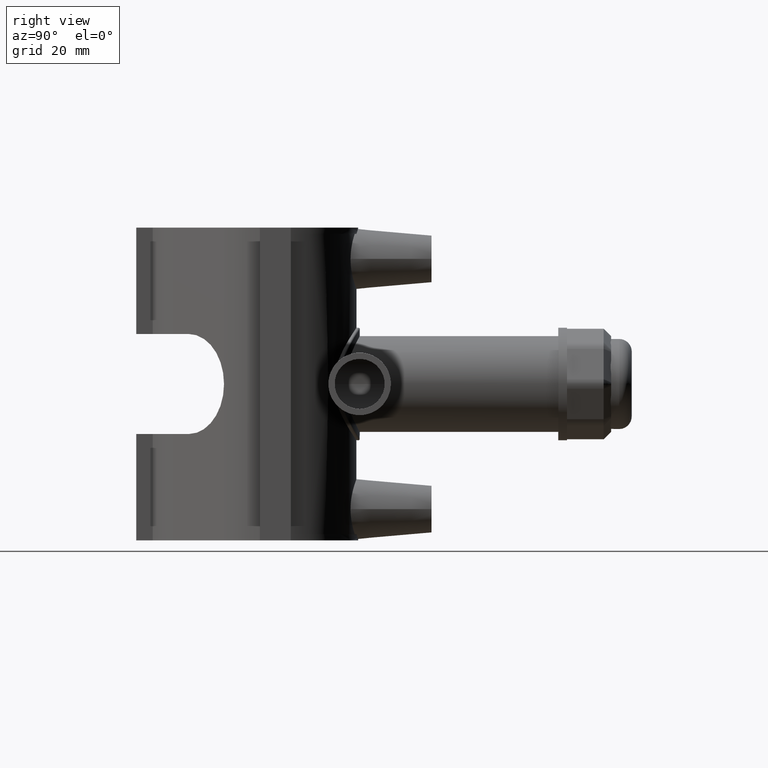
[diagram: clean part render]
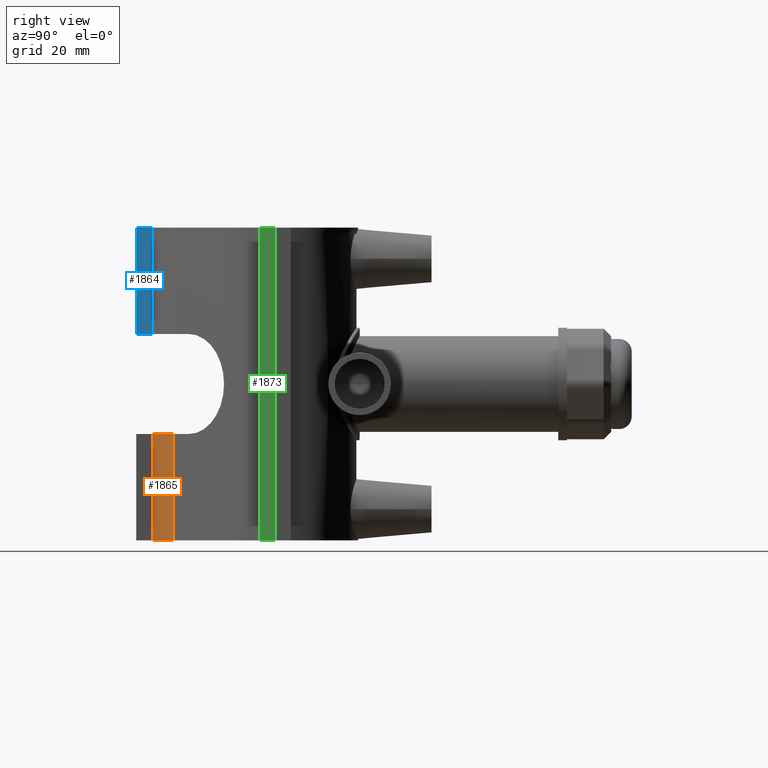
[diagram: same view with three faces highlighted in distinct colors, each labeled with its STEP entity id]
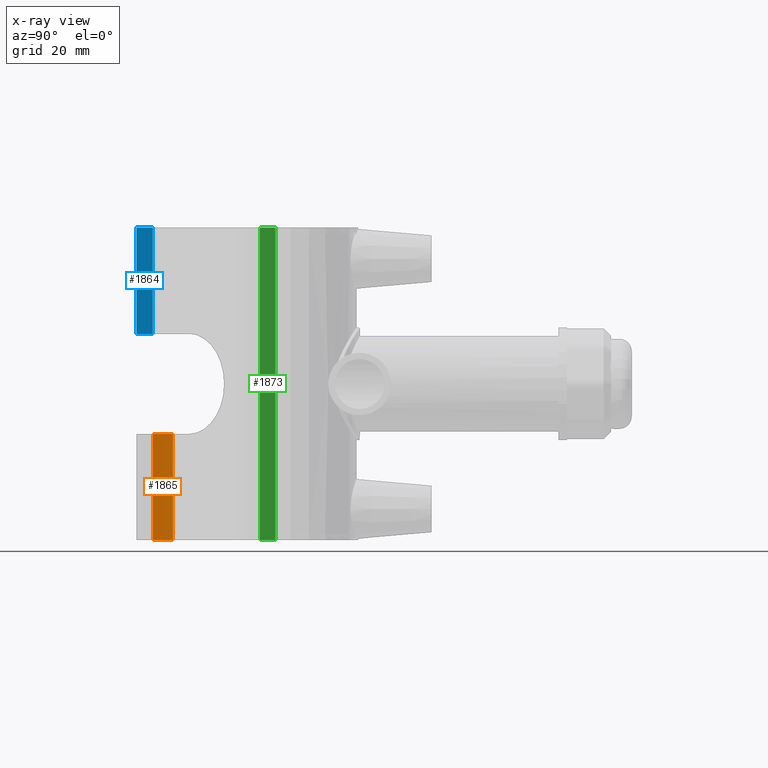
[diagram: x-ray of the same camera — body ghosted, the three highlighted faces saturated]
A machine part, right view with three faces highlighted in distinct colors.
The next image is the same camera in x-ray (body ghosted, the three faces saturated) — at least one of them is partly hidden behind the body in this view.
Their STEP definitions:

[orange] entity #1865 — the highlighted cylindrical surface (partial cylindrical patch) has radius 23.125 mm, axis along (0, 0, -1).
#162=LINE('',#3586,#307);
#169=LINE('',#3599,#314);
#307=VECTOR('',#2558,34.);
#314=VECTOR('',#2569,34.);
#407=CYLINDRICAL_SURFACE('',#2061,23.1250457296622);
#511=FACE_OUTER_BOUND('',#645,.T.);
#645=EDGE_LOOP('',(#1634,#1635,#1636,#1637));
#724=CIRCLE('',#2042,23.1250457296622);
#731=CIRCLE('',#2062,23.1250457296622);
#882=VERTEX_POINT('',#3538);
#883=VERTEX_POINT('',#3540);
#896=VERTEX_POINT('',#3585);
#900=VERTEX_POINT('',#3597);
#1121=EDGE_CURVE('',#883,#882,#724,.T.);
#1144=EDGE_CURVE('',#883,#896,#162,.T.);
#1151=EDGE_CURVE('',#882,#900,#169,.T.);
#1154=EDGE_CURVE('',#896,#900,#731,.T.);
#1634=ORIENTED_EDGE('',*,*,#1121,.T.);
#1635=ORIENTED_EDGE('',*,*,#1151,.T.);
#1636=ORIENTED_EDGE('',*,*,#1154,.F.);
#1637=ORIENTED_EDGE('',*,*,#1144,.F.);
#1865=ADVANCED_FACE('',(#511),#407,.T.);
#2042=AXIS2_PLACEMENT_3D('',#3541,#2510,#2511);
#2061=AXIS2_PLACEMENT_3D('',#3604,#2574,#2575);
#2062=AXIS2_PLACEMENT_3D('',#3605,#2576,#2577);
#2510=DIRECTION('center_axis',(-6.8691545148979E-16,-6.86915449858513E-16,
-1.));
#2511=DIRECTION('ref_axis',(-0.0453209175537758,-0.998972479316665,0.));
#2558=DIRECTION('',(0.,0.,-1.));
#2569=DIRECTION('',(0.,0.,-1.));
#2574=DIRECTION('center_axis',(0.,0.,-1.));
#2575=DIRECTION('ref_axis',(-0.0453209175537758,-0.998972479316665,0.));
#2576=DIRECTION('center_axis',(0.,0.,-1.));
#2577=DIRECTION('ref_axis',(-0.0453209175537758,-0.998972479316665,0.));
#3538=CARTESIAN_POINT('',(-12.4499249998828,-39.1453518956896,-16.));
#3540=CARTESIAN_POINT('',(-7.76644282218797E-8,-32.7037533402186,-16.));
#3541=CARTESIAN_POINT('Origin',(-16.3518767089415,-16.3518766701093,-16.));
#3585=CARTESIAN_POINT('',(-7.76644282218797E-8,-32.7037533402186,-50.));
#3586=CARTESIAN_POINT('',(-7.76644282218797E-8,-32.7037533402186,50.));
#3597=CARTESIAN_POINT('',(-12.4499249998828,-39.1453518956896,-50.));
#3599=CARTESIAN_POINT('',(-12.4499249998828,-39.1453518956896,50.));
#3604=CARTESIAN_POINT('Origin',(-16.3518767089415,-16.3518766701093,50.));
#3605=CARTESIAN_POINT('Origin',(-16.3518767089415,-16.3518766701093,-50.));

[blue] entity #1864 — the highlighted planar face has unit normal (1, 0, 0).
#139=LINE('',#3522,#284);
#160=LINE('',#3582,#305);
#170=LINE('',#3602,#315);
#171=LINE('',#3603,#316);
#284=VECTOR('',#2497,5.25780904129159);
#305=VECTOR('',#2554,34.);
#315=VECTOR('',#2572,34.);
#316=VECTOR('',#2573,5.25780904129159);
#510=FACE_OUTER_BOUND('',#644,.T.);
#644=EDGE_LOOP('',(#1630,#1631,#1632,#1633));
#873=VERTEX_POINT('',#3519);
#874=VERTEX_POINT('',#3521);
#895=VERTEX_POINT('',#3581);
#901=VERTEX_POINT('',#3601);
#1112=EDGE_CURVE('',#874,#873,#139,.T.);
#1142=EDGE_CURVE('',#895,#874,#160,.T.);
#1152=EDGE_CURVE('',#901,#873,#170,.T.);
#1153=EDGE_CURVE('',#895,#901,#171,.T.);
#1630=ORIENTED_EDGE('',*,*,#1112,.T.);
#1631=ORIENTED_EDGE('',*,*,#1152,.F.);
#1632=ORIENTED_EDGE('',*,*,#1153,.F.);
#1633=ORIENTED_EDGE('',*,*,#1142,.T.);
#1757=PLANE('',#2060);
#1864=ADVANCED_FACE('',(#510),#1757,.T.);
#2060=AXIS2_PLACEMENT_3D('',#3600,#2570,#2571);
#2497=DIRECTION('',(-8.44627878955777E-16,1.,-1.47196167826824E-16));
#2554=DIRECTION('',(0.,0.,-1.));
#2570=DIRECTION('center_axis',(1.,8.44627878955777E-16,0.));
#2571=DIRECTION('ref_axis',(8.88178419700125E-16,-1.,0.));
#2572=DIRECTION('',(0.,0.,-1.));
#2573=DIRECTION('',(-8.44627878955777E-16,1.,0.));
#3519=CARTESIAN_POINT('',(-12.4499249998828,-39.1453518956896,16.));
#3521=CARTESIAN_POINT('',(-12.4499249998828,-44.4031609369812,16.));
#3522=CARTESIAN_POINT('',(-12.4499249998828,-55.1136422607185,16.));
#3581=CARTESIAN_POINT('',(-12.4499249998828,-44.4031609369812,50.));
#3582=CARTESIAN_POINT('',(-12.4499249998828,-44.4031609369812,50.));
#3600=CARTESIAN_POINT('Origin',(-12.4499249998828,-39.1453518956896,50.));
#3601=CARTESIAN_POINT('',(-12.4499249998828,-39.1453518956896,50.));
#3602=CARTESIAN_POINT('',(-12.4499249998828,-39.1453518956896,50.));
#3603=CARTESIAN_POINT('',(-12.4499249998828,-44.4031609369812,50.));

[green] entity #1873 — the highlighted planar face has unit normal (1, 0, 0).
#175=LINE('',#3616,#320);
#183=LINE('',#3640,#328);
#185=LINE('',#3643,#330);
#186=LINE('',#3644,#331);
#320=VECTOR('',#2587,100.);
#328=VECTOR('',#2613,100.);
#330=VECTOR('',#2617,4.94999999999999);
#331=VECTOR('',#2618,4.94999999999999);
#519=FACE_OUTER_BOUND('',#653,.T.);
#653=EDGE_LOOP('',(#1669,#1670,#1671,#1672));
#903=VERTEX_POINT('',#3610);
#905=VERTEX_POINT('',#3614);
#911=VERTEX_POINT('',#3637);
#912=VERTEX_POINT('',#3639);
#1159=EDGE_CURVE('',#905,#903,#175,.T.);
#1171=EDGE_CURVE('',#912,#911,#183,.T.);
#1173=EDGE_CURVE('',#903,#911,#185,.T.);
#1174=EDGE_CURVE('',#912,#905,#186,.T.);
#1669=ORIENTED_EDGE('',*,*,#1173,.F.);
#1670=ORIENTED_EDGE('',*,*,#1159,.F.);
#1671=ORIENTED_EDGE('',*,*,#1174,.F.);
#1672=ORIENTED_EDGE('',*,*,#1171,.T.);
#1762=PLANE('',#2075);
#1873=ADVANCED_FACE('',(#519),#1762,.T.);
#2075=AXIS2_PLACEMENT_3D('',#3642,#2615,#2616);
#2587=DIRECTION('',(0.,0.,-1.));
#2613=DIRECTION('',(0.,0.,-1.));
#2615=DIRECTION('center_axis',(1.,0.,0.));
#2616=DIRECTION('ref_axis',(0.,-1.,0.));
#2617=DIRECTION('',(0.,-1.,0.));
#2618=DIRECTION('',(0.,1.,0.));
#3610=CARTESIAN_POINT('',(33.,0.0500000000000078,-50.));
#3614=CARTESIAN_POINT('',(33.,0.0500000000000078,50.));
#3616=CARTESIAN_POINT('',(33.,0.0500000000000078,50.));
#3637=CARTESIAN_POINT('',(33.,-4.89999999999998,-50.));
#3639=CARTESIAN_POINT('',(33.,-4.89999999999998,50.));
#3640=CARTESIAN_POINT('',(33.,-4.89999999999998,50.));
#3642=CARTESIAN_POINT('Origin',(33.,0.0500000000000078,50.));
#3643=CARTESIAN_POINT('',(33.,-11.0632902342453,-50.));
#3644=CARTESIAN_POINT('',(33.,-4.89999999999998,50.));